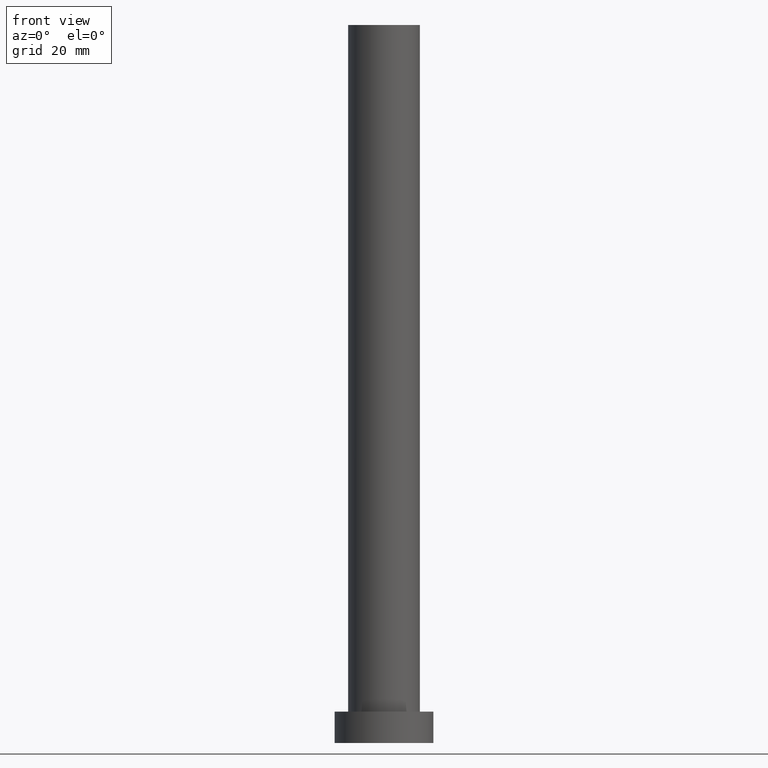
[diagram: clean part render]
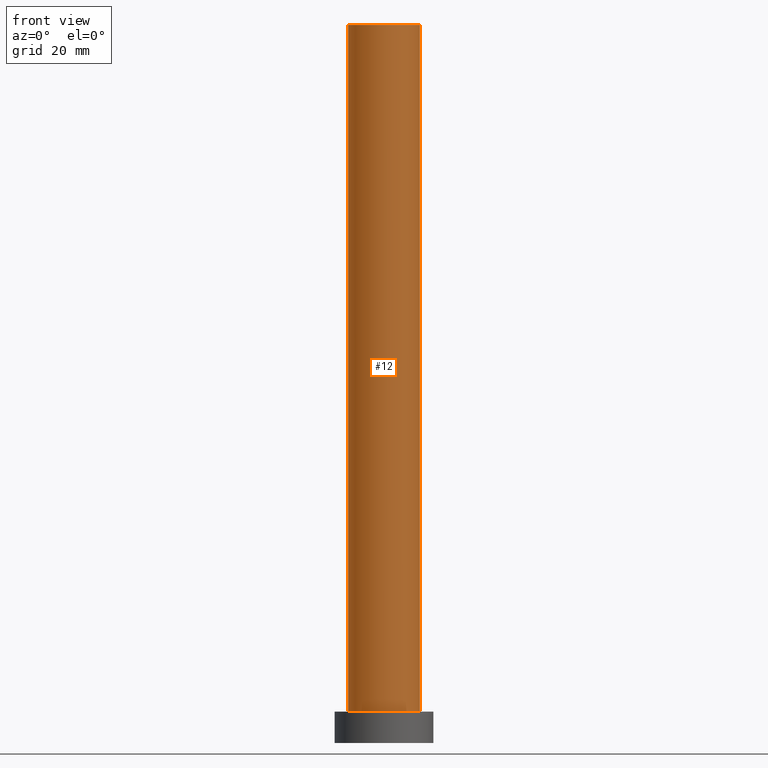
[diagram: same view with one face highlighted and labeled with its STEP entity id]
A machine part, front view. The second image highlights one B-rep face of the part: STEP entity #12.
In plain terms, the highlighted cylindrical surface (edge-blend (fillet) strip) has radius 8 mm, axis along (-0, -0, -1).
Its self-contained STEP definition (entity closure, byte-faithful):
#6 = DIRECTION ( 'NONE',  ( 0.000000000000000000, 0.000000000000000000, 1.000000000000000000 ) ) ;
#12 = ADVANCED_FACE ( 'NONE', ( #186 ), #229, .T. ) ;
#15 = DIRECTION ( 'NONE',  ( -0.000000000000000000, -0.000000000000000000, -1.000000000000000000 ) ) ;
#17 = EDGE_CURVE ( 'NONE', #79, #36, #147, .T. ) ;
#22 = VECTOR ( 'NONE', #129, 1000.000000000000000 ) ;
#27 = DIRECTION ( 'NONE',  ( 1.000000000000000000, 0.000000000000000000, 0.000000000000000000 ) ) ;
#28 = CIRCLE ( 'NONE', #174, 8.000000000000000000 ) ;
#36 = VERTEX_POINT ( 'NONE', #101 ) ;
#37 = VERTEX_POINT ( 'NONE', #103 ) ;
#38 = EDGE_CURVE ( 'NONE', #37, #46, #28, .T. ) ;
#40 = CARTESIAN_POINT ( 'NONE',  ( 0.000000000000000000, 0.000000000000000000, 160.0000000000000000 ) ) ;
#44 = ORIENTED_EDGE ( 'NONE', *, *, #17, .F. ) ;
#46 = VERTEX_POINT ( 'NONE', #65 ) ;
#63 = CARTESIAN_POINT ( 'NONE',  ( 0.000000000000000000, 0.000000000000000000, 7.000000000000000000 ) ) ;
#65 = CARTESIAN_POINT ( 'NONE',  ( 8.000000000000000000, 9.797174393178825657E-16, 7.000000000000000000 ) ) ;
#72 = LINE ( 'NONE', #216, #22 ) ;
#79 = VERTEX_POINT ( 'NONE', #108 ) ;
#99 = CARTESIAN_POINT ( 'NONE',  ( 0.000000000000000000, 0.000000000000000000, 160.0000000000000000 ) ) ;
#101 = CARTESIAN_POINT ( 'NONE',  ( 8.000000000000000000, 9.797174393178825657E-16, 160.0000000000000000 ) ) ;
#103 = CARTESIAN_POINT ( 'NONE',  ( -8.000000000000000000, 0.000000000000000000, 7.000000000000000000 ) ) ;
#105 = DIRECTION ( 'NONE',  ( -0.000000000000000000, -0.000000000000000000, -1.000000000000000000 ) ) ;
#108 = CARTESIAN_POINT ( 'NONE',  ( -8.000000000000000000, 0.000000000000000000, 160.0000000000000000 ) ) ;
#127 = CARTESIAN_POINT ( 'NONE',  ( -8.000000000000000000, 0.000000000000000000, 160.0000000000000000 ) ) ;
#129 = DIRECTION ( 'NONE',  ( -0.000000000000000000, -0.000000000000000000, -1.000000000000000000 ) ) ;
#133 = AXIS2_PLACEMENT_3D ( 'NONE', #99, #105, #146 ) ;
#136 = ORIENTED_EDGE ( 'NONE', *, *, #214, .F. ) ;
#138 = ORIENTED_EDGE ( 'NONE', *, *, #38, .T. ) ;
#141 = AXIS2_PLACEMENT_3D ( 'NONE', #40, #6, #206 ) ;
#146 = DIRECTION ( 'NONE',  ( -1.000000000000000000, 0.000000000000000000, 0.000000000000000000 ) ) ;
#147 = CIRCLE ( 'NONE', #141, 8.000000000000000000 ) ;
#149 = LINE ( 'NONE', #127, #189 ) ;
#153 = ORIENTED_EDGE ( 'NONE', *, *, #179, .T. ) ;
#174 = AXIS2_PLACEMENT_3D ( 'NONE', #63, #248, #27 ) ;
#179 = EDGE_CURVE ( 'NONE', #79, #37, #149, .T. ) ;
#186 = FACE_OUTER_BOUND ( 'NONE', #234, .T. ) ;
#189 = VECTOR ( 'NONE', #15, 1000.000000000000000 ) ;
#206 = DIRECTION ( 'NONE',  ( 1.000000000000000000, 0.000000000000000000, 0.000000000000000000 ) ) ;
#214 = EDGE_CURVE ( 'NONE', #36, #46, #72, .T. ) ;
#216 = CARTESIAN_POINT ( 'NONE',  ( 8.000000000000000000, 9.797174393178825657E-16, 160.0000000000000000 ) ) ;
#229 = CYLINDRICAL_SURFACE ( 'NONE', #133, 8.000000000000000000 ) ;
#234 = EDGE_LOOP ( 'NONE', ( #136, #44, #153, #138 ) ) ;
#248 = DIRECTION ( 'NONE',  ( 0.000000000000000000, 0.000000000000000000, 1.000000000000000000 ) ) ;